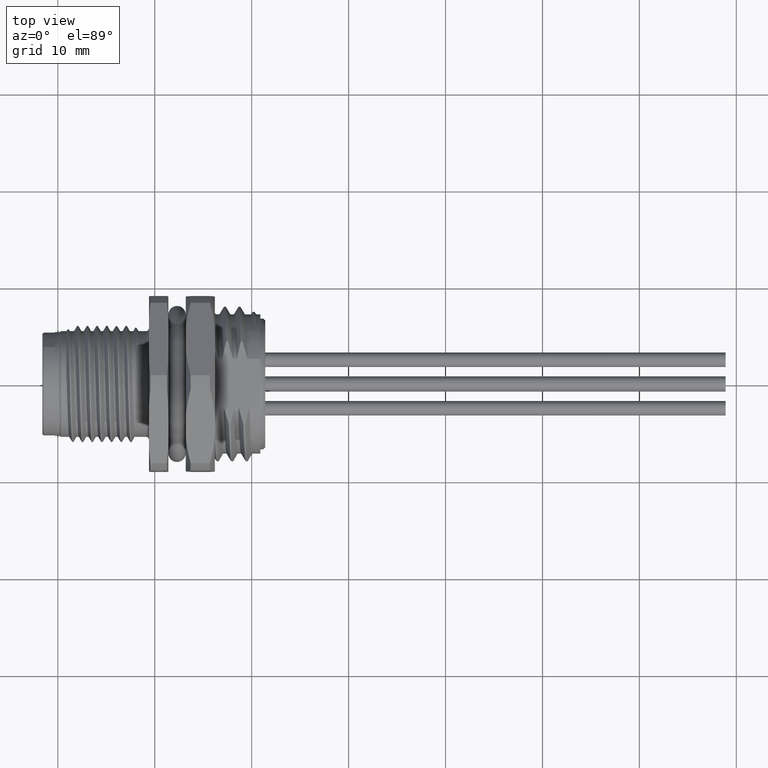
[diagram: clean part render]
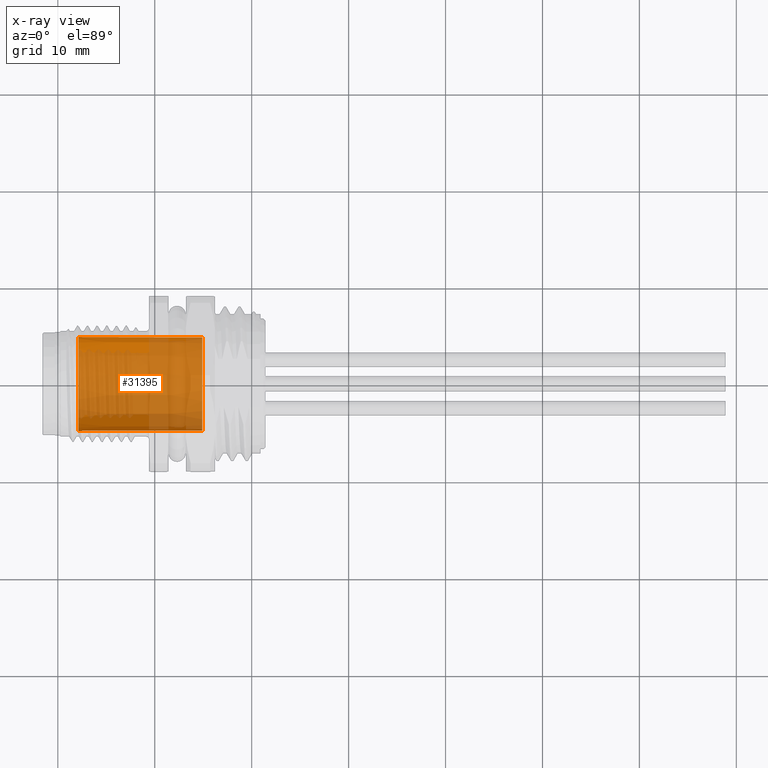
[diagram: x-ray — body ghosted, one internal face saturated and labeled with its STEP entity id]
A machine part, top view, then the same camera in x-ray: the body is ghosted and one INTERNAL B-rep face — a face not visible from any outside direction — is saturated and labeled: STEP entity #31395.
In plain terms, the highlighted conical surface has half-angle 0.2 deg.
Its self-contained STEP definition (entity closure, byte-faithful):
#31265=CARTESIAN_POINT('',(2.106995914944E0,0.E0,0.E0));
#31266=DIRECTION('',(1.E0,0.E0,0.E0));
#31267=DIRECTION('',(0.E0,-7.071067811865E-1,-7.071067811865E-1));
#31268=AXIS2_PLACEMENT_3D('',#31265,#31266,#31267);
#31280=DIRECTION('',(9.999939076578E-1,-3.490651415289E-3,0.E0));
#31281=VECTOR('',#31280,1.279308202489E1);
#31282=CARTESIAN_POINT('',(2.106995914944E0,4.844656189876E0,0.E0));
#31283=LINE('',#31282,#31281);
#31284=DIRECTION('',(-9.999939076578E-1,-3.490651415289E-3,0.E0));
#31285=VECTOR('',#31284,1.279308202489E1);
#31286=CARTESIAN_POINT('',(1.49E1,-4.8E0,0.E0));
#31287=LINE('',#31286,#31285);
#31288=CARTESIAN_POINT('',(1.49E1,0.E0,0.E0));
#31289=DIRECTION('',(-1.E0,0.E0,0.E0));
#31290=DIRECTION('',(0.E0,1.E0,0.E0));
#31291=AXIS2_PLACEMENT_3D('',#31288,#31289,#31290);
#31316=CARTESIAN_POINT('',(2.106995914944E0,0.E0,0.E0));
#31317=DIRECTION('',(1.E0,0.E0,0.E0));
#31318=DIRECTION('',(0.E0,-1.E0,0.E0));
#31319=AXIS2_PLACEMENT_3D('',#31316,#31317,#31318);
#31341=CARTESIAN_POINT('',(2.106995914944E0,-4.844656189876E0,0.E0));
#31342=CARTESIAN_POINT('',(2.106995914944E0,-3.425689244379E0,
-3.425689244379E0));
#31343=VERTEX_POINT('',#31341);
#31344=VERTEX_POINT('',#31342);
#31351=CARTESIAN_POINT('',(1.49E1,-4.8E0,0.E0));
#31352=VERTEX_POINT('',#31351);
#31353=CARTESIAN_POINT('',(1.49E1,4.8E0,0.E0));
#31354=VERTEX_POINT('',#31353);
#31355=CARTESIAN_POINT('',(2.106995914944E0,4.844656189876E0,0.E0));
#31356=VERTEX_POINT('',#31355);
#31379=CARTESIAN_POINT('',(8.503497957473E0,0.E0,0.E0));
#31380=DIRECTION('',(-1.E0,0.E0,0.E0));
#31381=DIRECTION('',(0.E0,1.E0,0.E0));
#31382=AXIS2_PLACEMENT_3D('',#31379,#31380,#31381);
#31383=CONICAL_SURFACE('',#31382,4.822328094938E0,2.000000000035E-1);
#31385=ORIENTED_EDGE('',*,*,#31384,.F.);
#31387=ORIENTED_EDGE('',*,*,#31386,.F.);
#31389=ORIENTED_EDGE('',*,*,#31388,.F.);
#31390=ORIENTED_EDGE('',*,*,#31366,.F.);
#31392=ORIENTED_EDGE('',*,*,#31391,.F.);
#31393=EDGE_LOOP('',(#31385,#31387,#31389,#31390,#31392));
#31394=FACE_OUTER_BOUND('',#31393,.F.);
#31395=ADVANCED_FACE('',(#31394),#31383,.T.);
#31269=CIRCLE('',#31268,4.844656189876E0);
#31292=CIRCLE('',#31291,4.8E0);
#31320=CIRCLE('',#31319,4.844656189876E0);
#31366=EDGE_CURVE('',#31344,#31356,#31269,.T.);
#31384=EDGE_CURVE('',#31352,#31343,#31287,.T.);
#31386=EDGE_CURVE('',#31354,#31352,#31292,.T.);
#31388=EDGE_CURVE('',#31356,#31354,#31283,.T.);
#31391=EDGE_CURVE('',#31343,#31344,#31320,.T.);